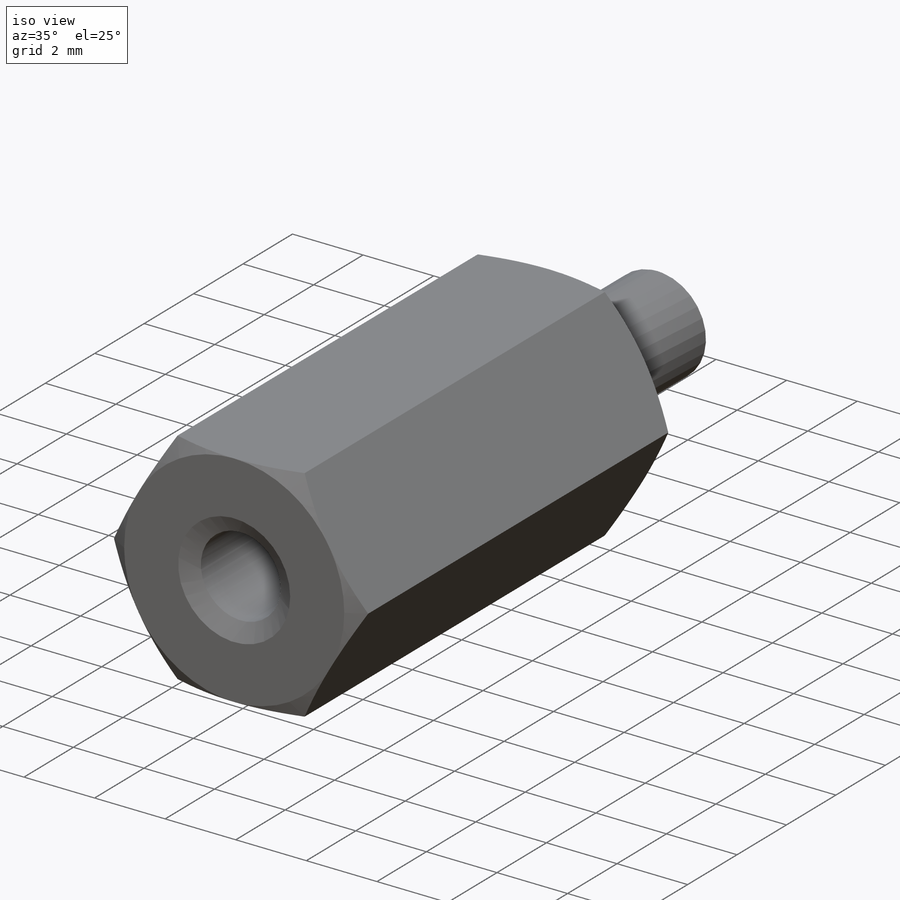
[diagram: iso view]
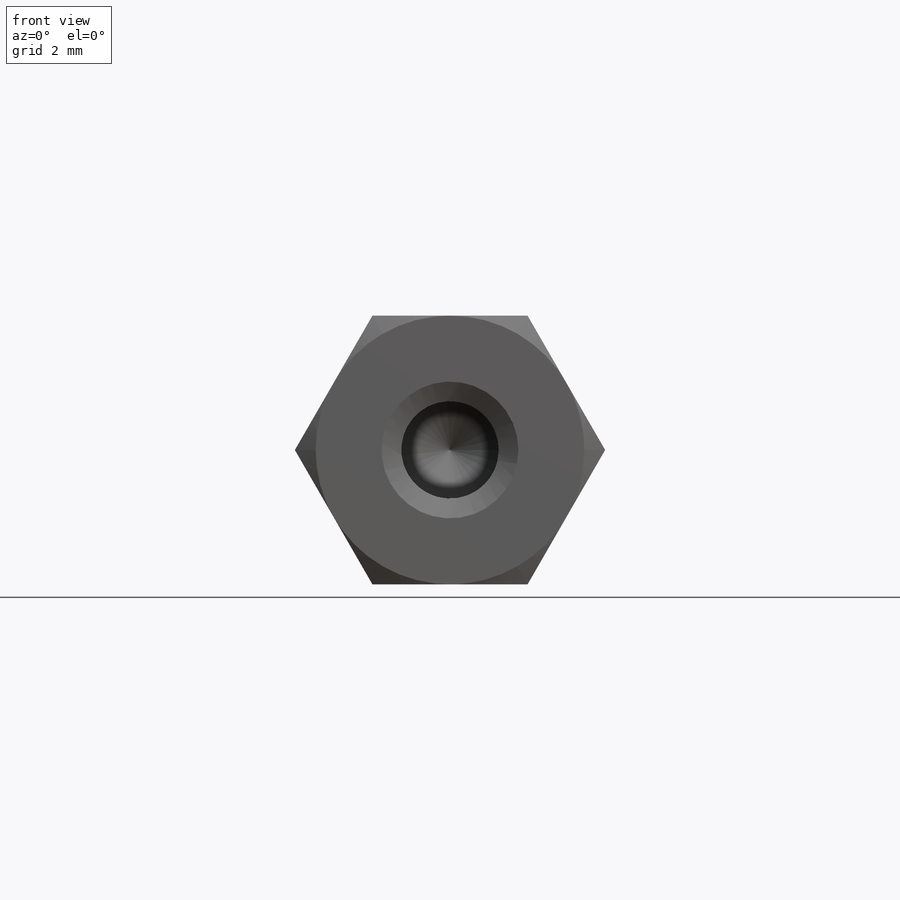
[diagram: front view]
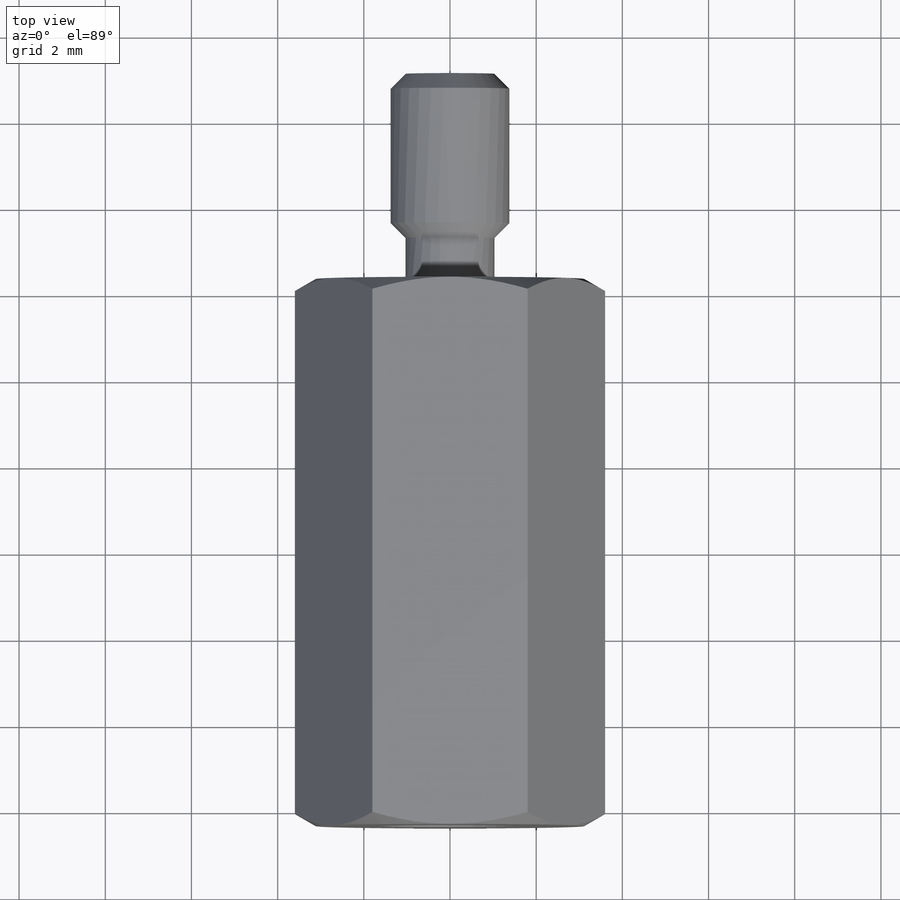
[diagram: top view]
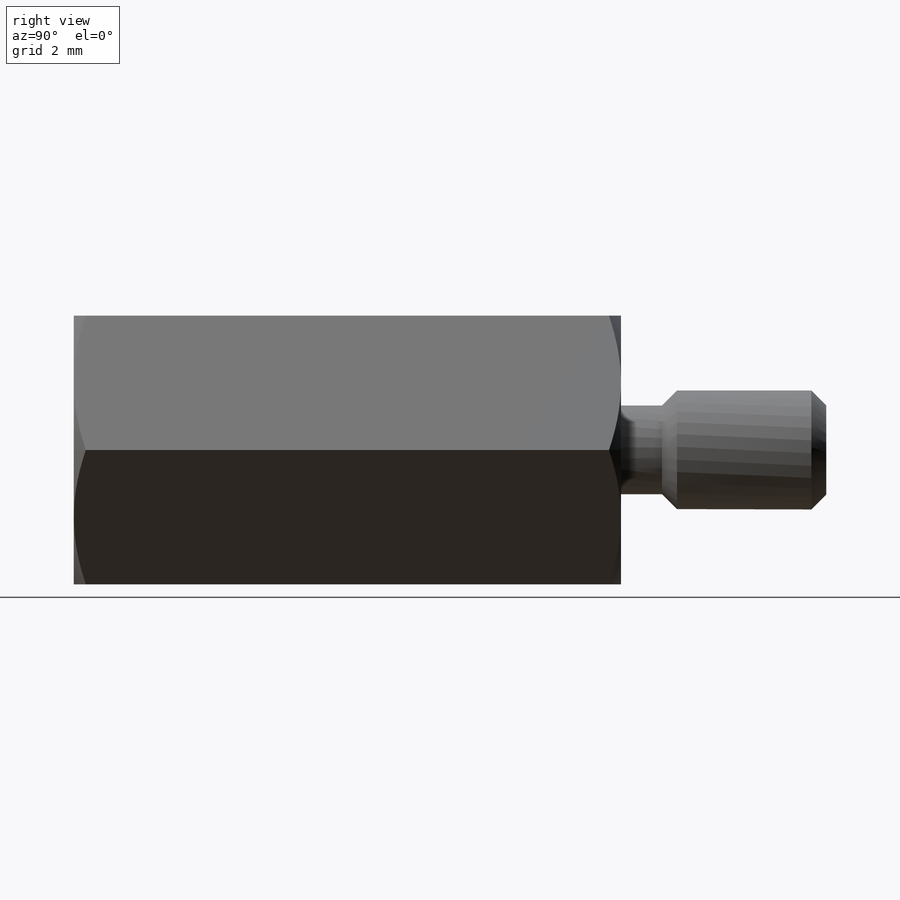
[diagram: right view]
SOLIDWORKS PART (.sldprt)
format: sldprt  version: not decoded by parser v0  size: 509,952 bytes
history: native  units: mm
features: sketch x7, thread x3, hole x2, material x1, extrude x1, cut_revolve x1, mirror x1, revolve x1 (+11 scaffold rows collapsed)
feature tree (28):
  scaffold x11  (default folders/planes/origin — collapsed)
  material  "Plain Carbon Steel"
  sketch  "Sketch1"  dims[D1=6.2357mm D2=~3.666174mm]
  extrude  "Extrude1"  Depth=12.7mm
  sketch  "Sketch3"  dims[c1.D1=~0.884824mm c2.D1=30.0deg c2.D2=0.254mm c2.D3=1.524mm]
  cut_revolve  "Cut-Revolve1"  Angle=360deg
  mirror  "Mirror1"
  sketch  "Sketch2"  dims[c1.D1=~2.06756mm c1.D2=~2.75971mm c1.D3=0.9525mm c1.D4=4.7625mm c1.D5=~0.559006mm c2.D5=45.0deg]
  revolve  "4-40 stud"  [1 undecoded]
  thread  "Cosmetic Thread1"  Diameter=2.06756mm  [1 undecoded]
  hole  "#4-40 Tapped Hole1(SHALLOW)"  [1 undecoded]
  sketch  "Sketch5"
  thread  "Cosmetic Thread2"  Diameter=3.81mm  [1 undecoded]
  sketch  "Sketch4"  dims[hole-wizard template sketch: 39 standard entries collapsed; hole parameters kept: c13.Tap Drill Dia.=2.2606mm c13.Tap Drill Depth=5.715mm c13.Near C'Sink Dia.=3.175mm c13.D4=~33.297463mm c13.Near C'Sink Angle=120.0deg c14.D5=~14.816244mm c14.Drill Angle=118.0deg]
  hole  "#4-40 Tapped Hole1 (STANDARD DEPTH)"  Diameter=2.2606mm Depth=8.255mm
  sketch  "Sketch7"
  sketch  "Sketch6"  dims[hole-wizard template sketch: 39 standard entries collapsed; hole parameters kept: c13.Tap Drill Dia.=2.2606mm c13.Tap Drill Depth=8.255mm c13.Near C'Sink Dia.=3.175mm c13.D4=~33.297463mm c13.Near C'Sink Angle=120.0deg c14.D5=~14.816244mm c14.Drill Angle=118.0deg]
  thread  "Cosmetic Thread3"  Diameter=6.35mm  [1 undecoded]
decode coverage: 11 of 16 modeling features carry decoded parameters
note: ~ marks probable driven/reference dimensions
note: 5 parameter values undecoded
note: suppression state not decoded; provenance and decode notes live in map.json
